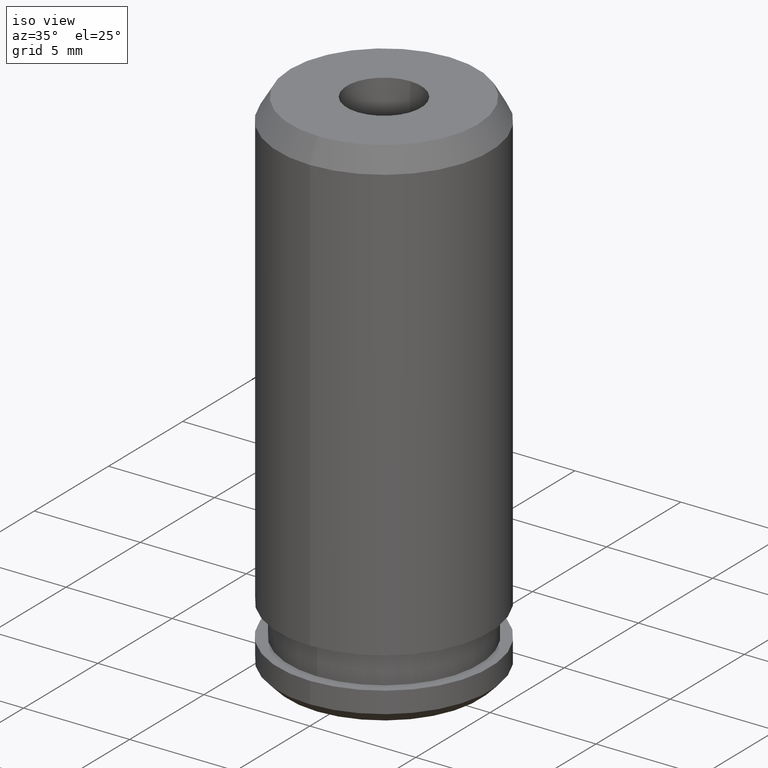
[diagram: clean part render]
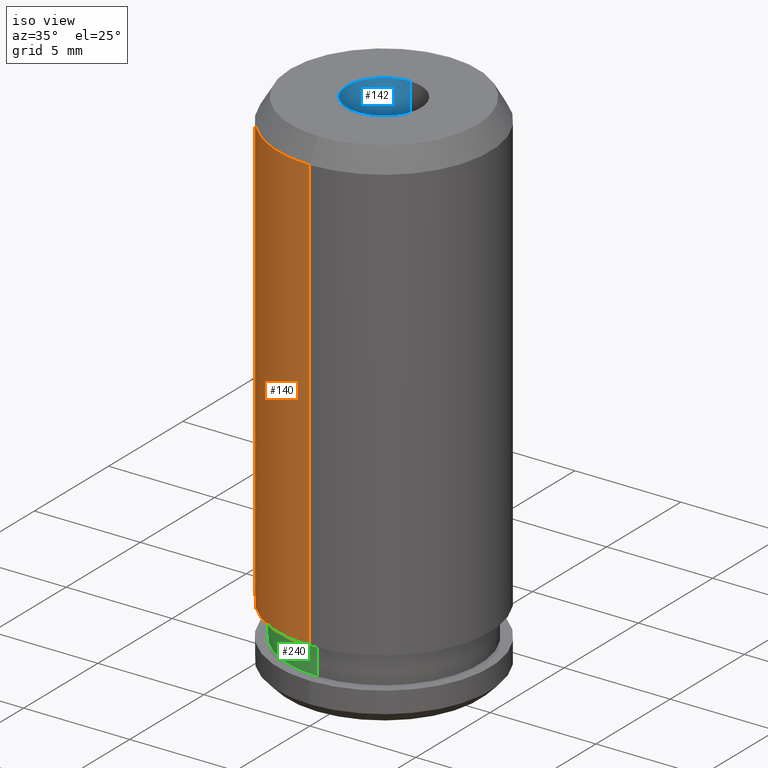
[diagram: same view with three faces highlighted in distinct colors, each labeled with its STEP entity id]
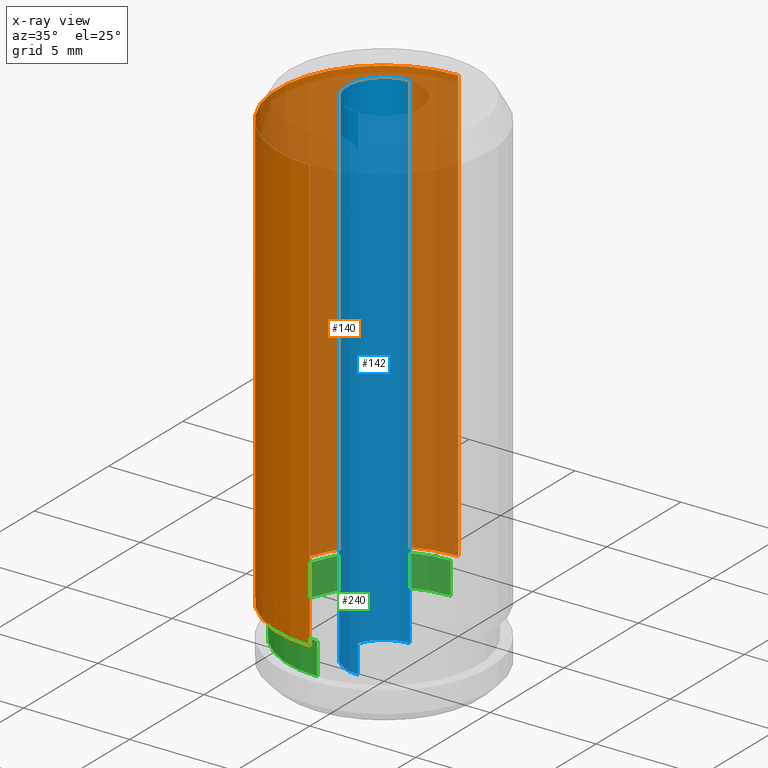
[diagram: x-ray of the same camera — body ghosted, the three highlighted faces saturated]
A machine part, iso view with three faces highlighted in distinct colors.
The next image is the same camera in x-ray (body ghosted, the three faces saturated) — at least one of them is partly hidden behind the body in this view.
Their STEP definitions:

[orange] entity #140 — the highlighted cylindrical surface (partial cylindrical patch) has radius 5 mm, axis along (0, -0, -1).
#104=VERTEX_POINT('NONE',#274);
#114=VERTEX_POINT('NONE',#285);
#124=EDGE_CURVE('NONE',#178,#114,#295,.T.);
#136=EDGE_CURVE('NONE',#104,#192,#309,.T.);
#140=ADVANCED_FACE('NONE',(#313),#314,.T.);
#178=VERTEX_POINT('NONE',#358);
#192=VERTEX_POINT('NONE',#373);
#212=EDGE_CURVE('NONE',#104,#178,#397,.T.);
#246=EDGE_CURVE('NONE',#192,#114,#437,.T.);
#274=CARTESIAN_POINT('',(0.0,-5.0,23.5));
#285=CARTESIAN_POINT('',(-6.12303176911189E-016,5.0,3.0));
#295=CIRCLE('',#486,5.0);
#309=CIRCLE('',#508,5.0);
#313=FACE_OUTER_BOUND('',#512,.T.);
#314=CYLINDRICAL_SURFACE('',#513,5.0);
#358=CARTESIAN_POINT('',(0.0,-5.0,3.0));
#373=CARTESIAN_POINT('',(-6.12303176911188E-016,5.0,23.5));
#397=LINE('',#617,#618);
#437=LINE('',#666,#667);
#486=AXIS2_PLACEMENT_3D('',#702,#703,#704);
#508=AXIS2_PLACEMENT_3D('',#719,#720,#721);
#512=EDGE_LOOP('',(#723,#724,#725,#726));
#513=AXIS2_PLACEMENT_3D('',#727,#728,#729);
#617=CARTESIAN_POINT('',(0.0,-5.0,-1.13644490972339));
#618=VECTOR('',#837,1000.0);
#666=CARTESIAN_POINT('',(-6.12303176911188E-016,5.0,-1.13644490972339));
#667=VECTOR('',#894,1000.0);
#702=CARTESIAN_POINT('',(0.0,0.0,3.0));
#703=DIRECTION('',(0.0,0.0,-1.0));
#704=DIRECTION('',(0.0,-1.0,0.0));
#719=CARTESIAN_POINT('',(0.0,0.0,23.5));
#720=DIRECTION('',(0.0,0.0,-1.0));
#721=DIRECTION('',(0.0,-1.0,0.0));
#723=ORIENTED_EDGE('',*,*,#136,.T.);
#724=ORIENTED_EDGE('',*,*,#246,.T.);
#725=ORIENTED_EDGE('',*,*,#124,.F.);
#726=ORIENTED_EDGE('',*,*,#212,.F.);
#727=CARTESIAN_POINT('',(0.0,0.0,-1.13644490972339));
#728=DIRECTION('',(0.0,-0.0,-1.0));
#729=DIRECTION('',(0.0,-1.0,0.0));
#837=DIRECTION('',(0.0,0.0,-1.0));
#894=DIRECTION('',(0.0,0.0,-1.0));

[blue] entity #142 — the highlighted cylindrical surface (partial cylindrical patch) has radius 1.75 mm, axis along (0, -0, -1).
#102=VERTEX_POINT('NONE',#272);
#142=ADVANCED_FACE('NONE',(#316),#317,.F.);
#154=EDGE_CURVE('NONE',#228,#168,#331,.T.);
#168=VERTEX_POINT('NONE',#348);
#190=EDGE_CURVE('NONE',#236,#228,#371,.T.);
#210=EDGE_CURVE('NONE',#102,#168,#395,.T.);
#228=VERTEX_POINT('NONE',#416);
#232=EDGE_CURVE('NONE',#236,#102,#420,.T.);
#236=VERTEX_POINT('NONE',#424);
#272=CARTESIAN_POINT('',(-2.14306111918916E-016,1.75,24.5));
#316=FACE_OUTER_BOUND('',#515,.T.);
#317=CYLINDRICAL_SURFACE('',#516,1.75);
#331=CIRCLE('',#533,1.75);
#348=CARTESIAN_POINT('',(-2.32675207226251E-016,1.75,0.519615242270668));
#371=LINE('',#583,#584);
#395=LINE('',#613,#614);
#416=CARTESIAN_POINT('',(0.0,-1.75,0.519615242270668));
#420=CIRCLE('',#644,1.75);
#424=CARTESIAN_POINT('',(0.0,-1.75,24.5));
#515=EDGE_LOOP('',(#731,#732,#733,#734));
#516=AXIS2_PLACEMENT_3D('',#735,#736,#737);
#533=AXIS2_PLACEMENT_3D('',#755,#756,#757);
#583=CARTESIAN_POINT('',(0.0,-1.75,-1.13644490972339));
#584=VECTOR('',#799,1000.0);
#613=CARTESIAN_POINT('',(-2.14306111918916E-016,1.75,-1.13644490972339));
#614=VECTOR('',#836,1000.0);
#644=AXIS2_PLACEMENT_3D('',#868,#869,#870);
#731=ORIENTED_EDGE('',*,*,#210,.F.);
#732=ORIENTED_EDGE('',*,*,#232,.F.);
#733=ORIENTED_EDGE('',*,*,#190,.T.);
#734=ORIENTED_EDGE('',*,*,#154,.T.);
#735=CARTESIAN_POINT('',(0.0,0.0,-1.13644490972339));
#736=DIRECTION('',(0.0,-0.0,-1.0));
#737=DIRECTION('',(0.0,-1.0,0.0));
#755=CARTESIAN_POINT('',(0.0,0.0,0.519615242270668));
#756=DIRECTION('',(0.0,0.0,-1.0));
#757=DIRECTION('',(0.0,-1.0,0.0));
#799=DIRECTION('',(0.0,0.0,-1.0));
#836=DIRECTION('',(0.0,0.0,-1.0));
#868=CARTESIAN_POINT('',(0.0,0.0,24.5));
#869=DIRECTION('',(0.0,0.0,-1.0));
#870=DIRECTION('',(0.0,-1.0,0.0));

[green] entity #240 — the highlighted cylindrical surface (partial cylindrical patch) has radius 4.5 mm, axis along (0, -0, -1).
#108=EDGE_CURVE('NONE',#170,#204,#279,.T.);
#112=VERTEX_POINT('NONE',#283);
#128=EDGE_CURVE('NONE',#204,#226,#299,.T.);
#164=EDGE_CURVE('NONE',#170,#112,#344,.T.);
#170=VERTEX_POINT('NONE',#350);
#180=EDGE_CURVE('NONE',#112,#226,#360,.T.);
#204=VERTEX_POINT('NONE',#389);
#226=VERTEX_POINT('NONE',#414);
#240=ADVANCED_FACE('NONE',(#428),#429,.T.);
#279=CIRCLE('',#461,4.5);
#283=CARTESIAN_POINT('',(0.0,-4.5,1.5));
#299=LINE('',#493,#494);
#344=LINE('',#547,#548);
#350=CARTESIAN_POINT('',(0.0,-4.5,3.0));
#360=CIRCLE('',#569,4.5);
#389=CARTESIAN_POINT('',(-5.5107285922007E-016,4.5,3.0));
#414=CARTESIAN_POINT('',(-5.5107285922007E-016,4.5,1.5));
#428=FACE_OUTER_BOUND('',#655,.T.);
#429=CYLINDRICAL_SURFACE('',#656,4.5);
#461=AXIS2_PLACEMENT_3D('',#690,#691,#692);
#493=CARTESIAN_POINT('',(-5.5107285922007E-016,4.5,-1.13644490972339));
#494=VECTOR('',#706,1000.0);
#547=CARTESIAN_POINT('',(0.0,-4.5,-1.13644490972339));
#548=VECTOR('',#774,1000.0);
#569=AXIS2_PLACEMENT_3D('',#782,#783,#784);
#655=EDGE_LOOP('',(#876,#877,#878,#879));
#656=AXIS2_PLACEMENT_3D('',#880,#881,#882);
#690=CARTESIAN_POINT('',(0.0,0.0,3.0));
#691=DIRECTION('',(0.0,0.0,-1.0));
#692=DIRECTION('',(0.0,-1.0,0.0));
#706=DIRECTION('',(0.0,0.0,-1.0));
#774=DIRECTION('',(0.0,0.0,-1.0));
#782=CARTESIAN_POINT('',(0.0,0.0,1.5));
#783=DIRECTION('',(0.0,0.0,-1.0));
#784=DIRECTION('',(0.0,-1.0,0.0));
#876=ORIENTED_EDGE('',*,*,#108,.T.);
#877=ORIENTED_EDGE('',*,*,#128,.T.);
#878=ORIENTED_EDGE('',*,*,#180,.F.);
#879=ORIENTED_EDGE('',*,*,#164,.F.);
#880=CARTESIAN_POINT('',(0.0,0.0,-1.13644490972339));
#881=DIRECTION('',(0.0,-0.0,-1.0));
#882=DIRECTION('',(0.0,-1.0,0.0));